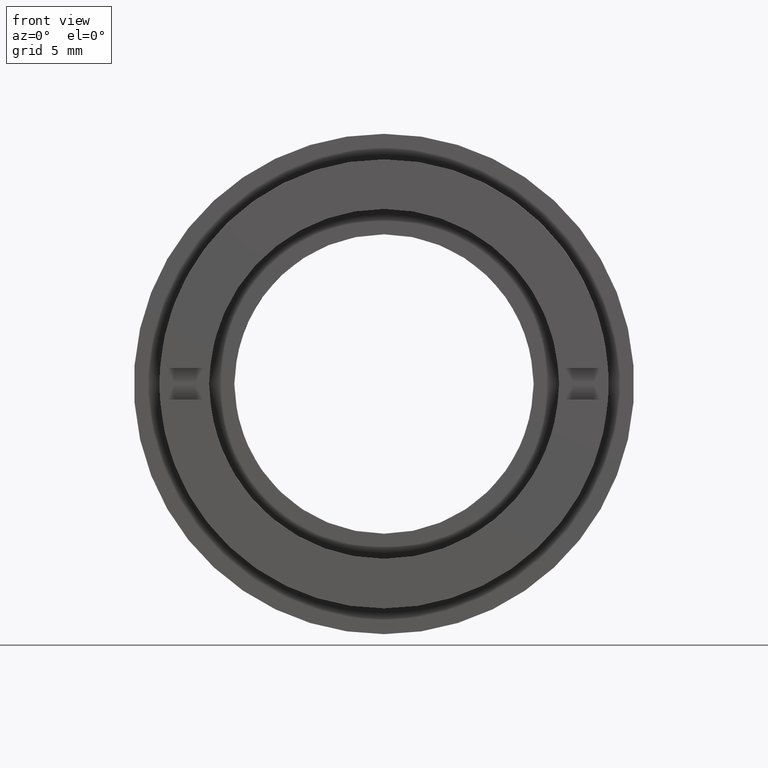
[diagram: clean part render]
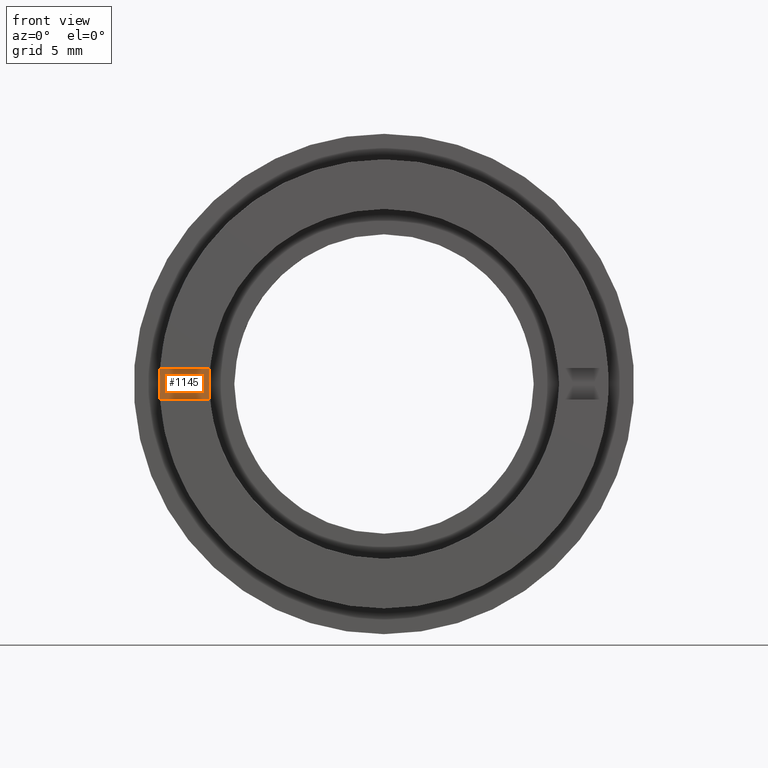
[diagram: same view with one face highlighted and labeled with its STEP entity id]
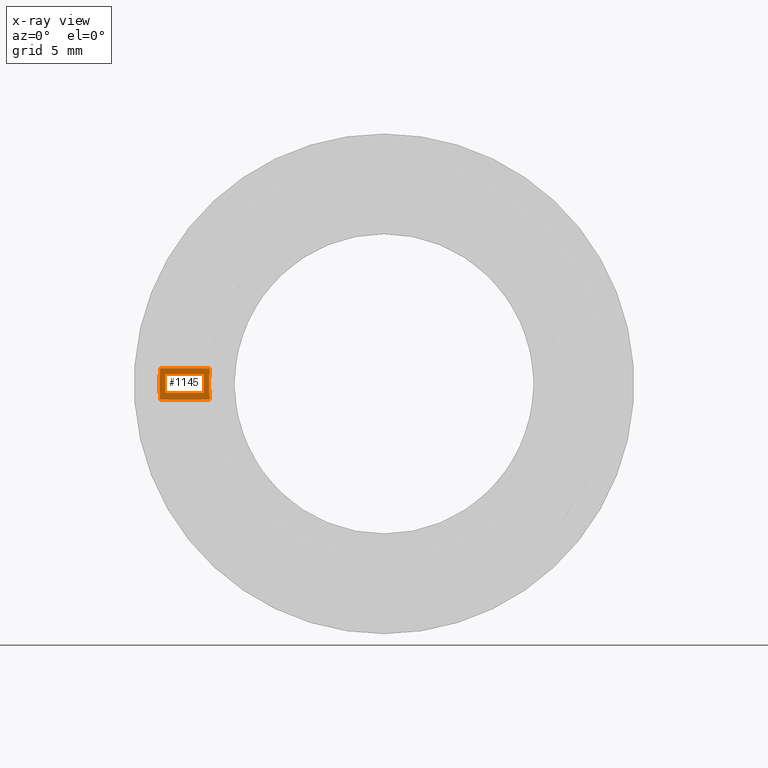
[diagram: x-ray of the same camera — body ghosted, the highlighted face saturated]
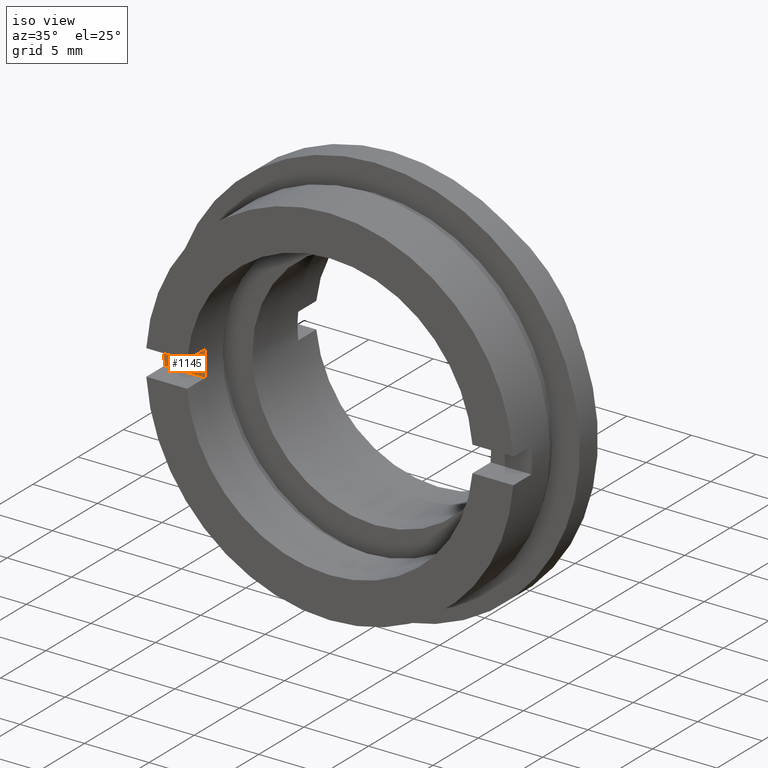
[diagram: same view with one face highlighted and labeled with its STEP entity id]
A machine part, front view. The second image highlights one B-rep face of the part: STEP entity #1145.
The next image is the same camera in x-ray: the body ghosted, the highlighted face saturated — about 0% of this face is hidden behind the body in this view.
A second angle (iso view) of the same face is appended — the face is thin or edge-on in the first view.
In plain terms, the highlighted planar face has unit normal (0, 1, 0).
Its self-contained STEP definition (entity closure, byte-faithful):
#56 = AXIS2_PLACEMENT_3D ( 'NONE', #1132, #430, #179 ) ;
#93 = DIRECTION ( 'NONE',  ( 1.000000000000000000, -0.0000000000000000000, -0.0000000000000000000 ) ) ;
#95 = FACE_OUTER_BOUND ( 'NONE', #400, .T. ) ;
#128 = AXIS2_PLACEMENT_3D ( 'NONE', #215, #973, #858 ) ;
#135 = CARTESIAN_POINT ( 'NONE',  ( -11.05486318323297500, 1.999999999999998200, 1.000000000000000200 ) ) ;
#167 = ORIENTED_EDGE ( 'NONE', *, *, #1222, .T. ) ;
#179 = DIRECTION ( 'NONE',  ( 0.0000000000000000000, 0.0000000000000000000, 1.000000000000000000 ) ) ;
#198 = VERTEX_POINT ( 'NONE', #768 ) ;
#215 = CARTESIAN_POINT ( 'NONE',  ( 0.0000000000000000000, 1.999999999999998200, 0.0000000000000000000 ) ) ;
#283 = CARTESIAN_POINT ( 'NONE',  ( -39.50000000000002100, 2.000000000000000000, -0.9999999999999995600 ) ) ;
#295 = ORIENTED_EDGE ( 'NONE', *, *, #1322, .F. ) ;
#400 = EDGE_LOOP ( 'NONE', ( #1138, #648, #167, #295 ) ) ;
#416 = LINE ( 'NONE', #455, #447 ) ;
#425 = CARTESIAN_POINT ( 'NONE',  ( -39.50000000000002100, 2.000000000000000000, 1.000000000000000200 ) ) ;
#430 = DIRECTION ( 'NONE',  ( 0.0000000000000000000, 1.000000000000000000, 0.0000000000000000000 ) ) ;
#447 = VECTOR ( 'NONE', #93, 1000.000000000000000 ) ;
#455 = CARTESIAN_POINT ( 'NONE',  ( -39.50000000000002100, 2.000000000000000000, 1.000000000000000200 ) ) ;
#464 = VECTOR ( 'NONE', #1153, 1000.000000000000000 ) ;
#471 = PLANE ( 'NONE',  #1086 ) ;
#500 = CARTESIAN_POINT ( 'NONE',  ( -14.21486897582949600, 2.000000000000000000, -0.9999999999999995600 ) ) ;
#536 = DIRECTION ( 'NONE',  ( 0.0000000000000000000, 1.000000000000000000, 0.0000000000000000000 ) ) ;
#648 = ORIENTED_EDGE ( 'NONE', *, *, #1288, .T. ) ;
#650 = CIRCLE ( 'NONE', #128, 14.24999999999999600 ) ;
#684 = CIRCLE ( 'NONE', #56, 11.09999999999999800 ) ;
#707 = VERTEX_POINT ( 'NONE', #500 ) ;
#768 = CARTESIAN_POINT ( 'NONE',  ( -14.21486897582949800, 1.999999999999998200, 1.000000000000000200 ) ) ;
#858 = DIRECTION ( 'NONE',  ( 0.0000000000000000000, 0.0000000000000000000, 1.000000000000000000 ) ) ;
#973 = DIRECTION ( 'NONE',  ( -0.0000000000000000000, -1.000000000000000000, -0.0000000000000000000 ) ) ;
#1027 = CARTESIAN_POINT ( 'NONE',  ( -11.05486318323297500, 2.000000000000000000, -0.9999999999999995600 ) ) ;
#1061 = DIRECTION ( 'NONE',  ( 0.0000000000000000000, -0.0000000000000000000, 1.000000000000000000 ) ) ;
#1086 = AXIS2_PLACEMENT_3D ( 'NONE', #425, #536, #1061 ) ;
#1125 = VERTEX_POINT ( 'NONE', #1027 ) ;
#1132 = CARTESIAN_POINT ( 'NONE',  ( 0.0000000000000000000, 1.999999999999998200, 0.0000000000000000000 ) ) ;
#1138 = ORIENTED_EDGE ( 'NONE', *, *, #1234, .T. ) ;
#1145 = ADVANCED_FACE ( 'NONE', ( #95 ), #471, .F. ) ;
#1153 = DIRECTION ( 'NONE',  ( 1.000000000000000000, -0.0000000000000000000, -0.0000000000000000000 ) ) ;
#1222 = EDGE_CURVE ( 'NONE', #1125, #1245, #684, .T. ) ;
#1234 = EDGE_CURVE ( 'NONE', #198, #707, #650, .T. ) ;
#1245 = VERTEX_POINT ( 'NONE', #135 ) ;
#1285 = LINE ( 'NONE', #283, #464 ) ;
#1288 = EDGE_CURVE ( 'NONE', #707, #1125, #1285, .T. ) ;
#1322 = EDGE_CURVE ( 'NONE', #198, #1245, #416, .T. ) ;